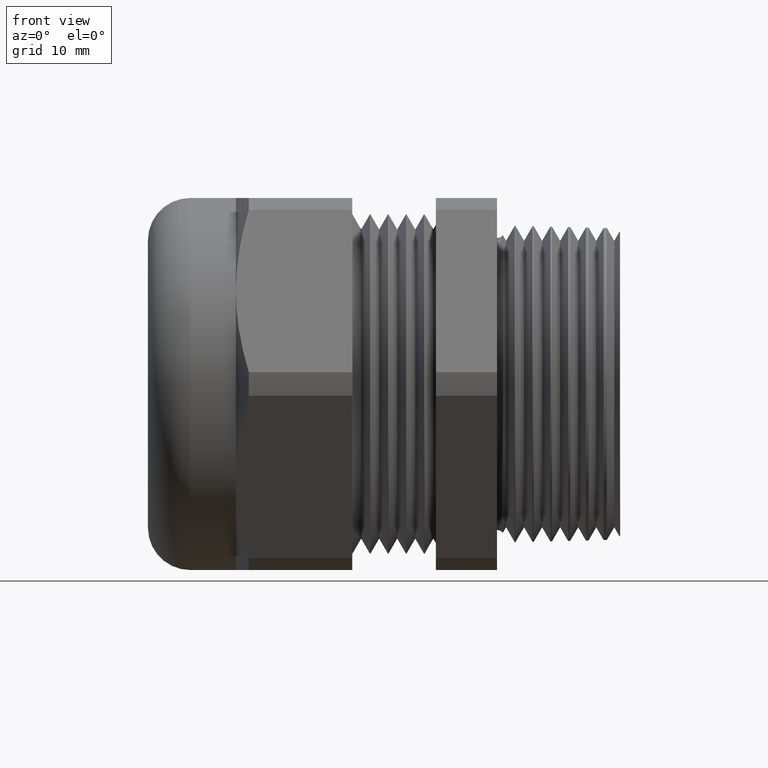
[diagram: clean part render]
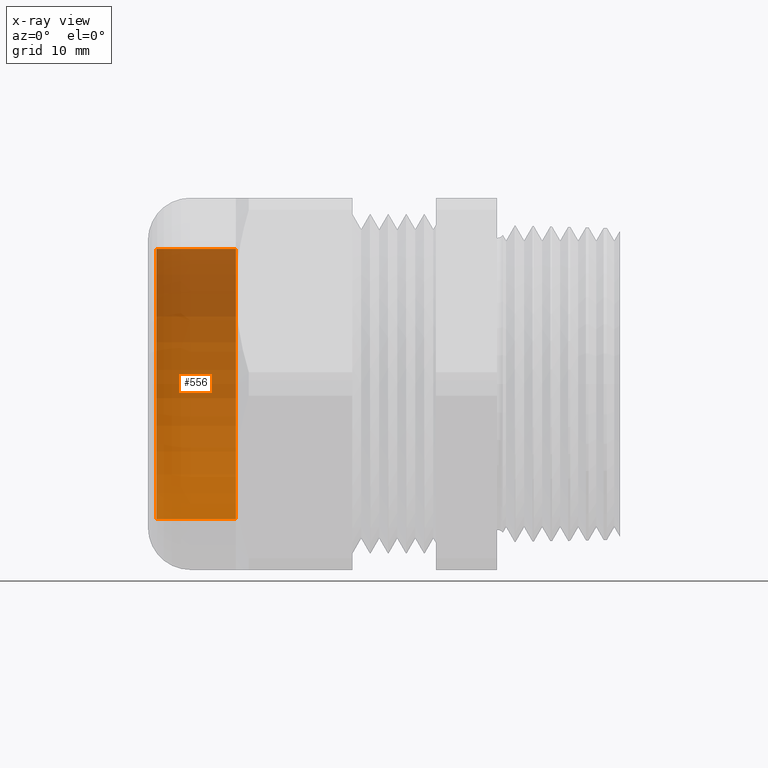
[diagram: x-ray — body ghosted, one internal face saturated and labeled with its STEP entity id]
A machine part, front view, then the same camera in x-ray: the body is ghosted and one INTERNAL B-rep face — a face not visible from any outside direction — is saturated and labeled: STEP entity #556.
In plain terms, the highlighted cylindrical surface (partial cylindrical patch) has radius 11.9825 mm, axis along (1, 0, 0).
Its self-contained STEP definition (entity closure, byte-faithful):
#507 = EDGE_CURVE ( 'NONE', #508, #509, #1915, .T. ) ;
#508 = VERTEX_POINT ( 'NONE', #1973 ) ;
#509 = VERTEX_POINT ( 'NONE', #1972 ) ;
#556 = ADVANCED_FACE ( 'NONE', ( #2025 ), #2017, .T. ) ;
#557 = EDGE_LOOP ( 'NONE', ( #558, #559, #562, #615 ) ) ;
#558 = ORIENTED_EDGE ( 'NONE', *, *, #507, .T. ) ;
#559 = ORIENTED_EDGE ( 'NONE', *, *, #560, .T. ) ;
#560 = EDGE_CURVE ( 'NONE', #509, #561, #2018, .T. ) ;
#561 = VERTEX_POINT ( 'NONE', #2010 ) ;
#562 = ORIENTED_EDGE ( 'NONE', *, *, #563, .F. ) ;
#563 = EDGE_CURVE ( 'NONE', #564, #561, #2009, .T. ) ;
#564 = VERTEX_POINT ( 'NONE', #2069 ) ;
#615 = ORIENTED_EDGE ( 'NONE', *, *, #616, .F. ) ;
#616 = EDGE_CURVE ( 'NONE', #508, #564, #2156, .T. ) ;
#1911 = DIRECTION ( 'NONE',  ( 0.0000000000000000000, 0.0000000000000000000, 1.000000000000000000 ) ) ;
#1912 = DIRECTION ( 'NONE',  ( 1.000000000000000000, 0.0000000000000000000, 0.0000000000000000000 ) ) ;
#1913 = CARTESIAN_POINT ( 'NONE',  ( -1.189999999999999700, 0.0000000000000000000, 0.0000000000000000000 ) ) ;
#1914 = AXIS2_PLACEMENT_3D ( 'NONE', #1913, #1912, #1911 ) ;
#1915 = CIRCLE ( 'NONE', #1914, 0.4717500000000001100 ) ;
#1972 = CARTESIAN_POINT ( 'NONE',  ( -1.189999999999999700, 5.777271274977640400E-017, 0.4717500000000001100 ) ) ;
#1973 = CARTESIAN_POINT ( 'NONE',  ( -1.189999999999999700, 0.0000000000000000000, -0.4717500000000001100 ) ) ;
#2005 = DIRECTION ( 'NONE',  ( 0.0000000000000000000, 0.0000000000000000000, -1.000000000000000000 ) ) ;
#2006 = DIRECTION ( 'NONE',  ( 1.000000000000000000, 0.0000000000000000000, 0.0000000000000000000 ) ) ;
#2007 = CARTESIAN_POINT ( 'NONE',  ( -0.9125000000000003100, 0.0000000000000000000, 0.0000000000000000000 ) ) ;
#2008 = AXIS2_PLACEMENT_3D ( 'NONE', #2007, #2006, #2005 ) ;
#2009 = CIRCLE ( 'NONE', #2008, 0.4717500000000001100 ) ;
#2010 = CARTESIAN_POINT ( 'NONE',  ( -0.9125000000000003100, 5.777271274977640400E-017, 0.4717500000000001100 ) ) ;
#2011 = DIRECTION ( 'NONE',  ( 1.000000000000000000, 0.0000000000000000000, 0.0000000000000000000 ) ) ;
#2012 = VECTOR ( 'NONE', #2011, 39.37007874015748100 ) ;
#2013 = CARTESIAN_POINT ( 'NONE',  ( 0.3423310023310022200, 5.777271274977640400E-017, 0.4717500000000001100 ) ) ;
#2014 = DIRECTION ( 'NONE',  ( 0.0000000000000000000, 0.0000000000000000000, -1.000000000000000000 ) ) ;
#2015 = DIRECTION ( 'NONE',  ( 1.000000000000000000, 0.0000000000000000000, 0.0000000000000000000 ) ) ;
#2016 = AXIS2_PLACEMENT_3D ( 'NONE', #2019, #2015, #2014 ) ;
#2017 = CYLINDRICAL_SURFACE ( 'NONE', #2016, 0.4717500000000001100 ) ;
#2018 = LINE ( 'NONE', #2013, #2012 ) ;
#2019 = CARTESIAN_POINT ( 'NONE',  ( 0.3423310023310022200, 0.0000000000000000000, 0.0000000000000000000 ) ) ;
#2025 = FACE_OUTER_BOUND ( 'NONE', #557, .T. ) ;
#2069 = CARTESIAN_POINT ( 'NONE',  ( -0.9125000000000003100, 0.0000000000000000000, -0.4717500000000001100 ) ) ;
#2153 = DIRECTION ( 'NONE',  ( 1.000000000000000000, 0.0000000000000000000, 0.0000000000000000000 ) ) ;
#2154 = VECTOR ( 'NONE', #2153, 39.37007874015748100 ) ;
#2155 = CARTESIAN_POINT ( 'NONE',  ( 0.3423310023310022200, 0.0000000000000000000, -0.4717500000000001100 ) ) ;
#2156 = LINE ( 'NONE', #2155, #2154 ) ;